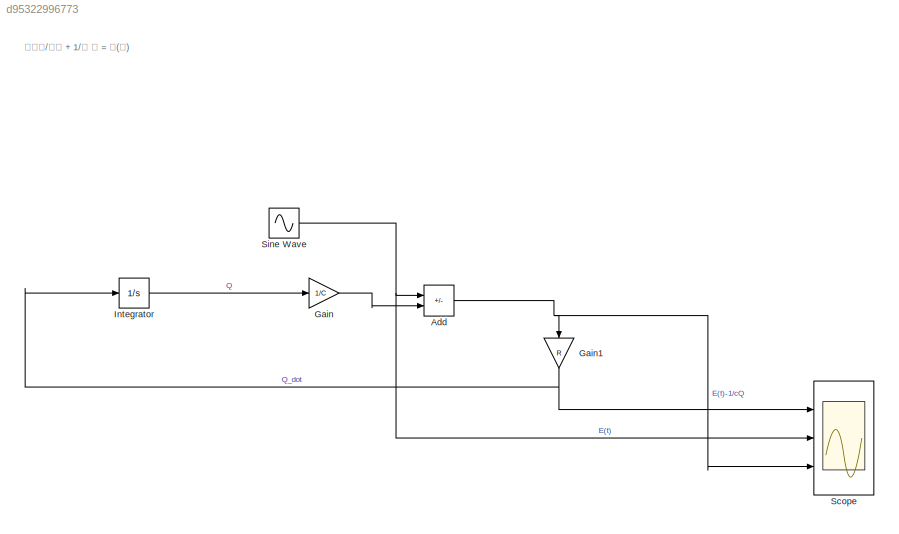
MODEL slx_d95322996773
KIND model
CONFIG AbsTol = auto
CONFIG EnableMultiTasking = off
CONFIG FixedStep = auto
CONFIG MaxStep = auto
CONFIG MinStep = auto
CONFIG RelTol = 1e-3
CONFIG SampleTimeConstraint = Unconstrained
CONFIG SolverName = VariableStepAuto
CONFIG StartTime = 0.0
CONFIG StopTime = 10.0
WORKSPACE source: mxarray member
WORKSPACE C: Simulink.Parameter (value not decoded)
WORKSPACE R: Simulink.Parameter (value not decoded)
BLOCK [Sum] Add
  IconShape = rectangular
  Inputs = +-
  Ports = [2, 1]
BLOCK [Gain] Gain
  Gain = 1/C
BLOCK [Gain] Gain1
  Gain = R
  NameLocation = left
BLOCK [Integrator] Integrator
  Ports = [1, 1]
BLOCK [Scope] Scope
  Floating = off
  NumInputPorts = 3
  Ports = [3]
  ScopeSpecificationString = Simulink.scopes.TimeScopeBlockCfg('CurrentConfiguration', extmgr.ConfigurationSet(extmgr.Configuration('Core','General UI',true),extmgr.Configuration('Core','Source UI',true),extmgr.Configuration('Sources','WiredSimulink',true),extmgr.Configuration('Visuals','Time Domain',true,'SerializedDisplays',{struct('MinYLimReal','-6.24975','MaxYLimReal','6.24796','YLabelReal','','MinYLimMag','0.00000','MaxY...<+2779ch>
BLOCK [Sin] Sine Wave
  Amplitude = 5
  Frequency = 10
  Ports = [0, 1]
  SampleTime = 0
ANNOTATION (root): 𝑅𝑑𝑄/𝑑𝑡 + 1/𝐶 𝑄 = 𝐸(𝑡)
NET Add:1 -> Gain1:1, Scope:3
NET Gain1:1 -> Integrator:1, Scope:1
LINE Gain:1 -> Add:2
LINE Integrator:1 -> Gain:1
NET Sine Wave:1 -> Add:1, Scope:2
note: NET lines group one-source signal fan-out (src -> all destinations, sorted); 1:1 wires keep LINE
